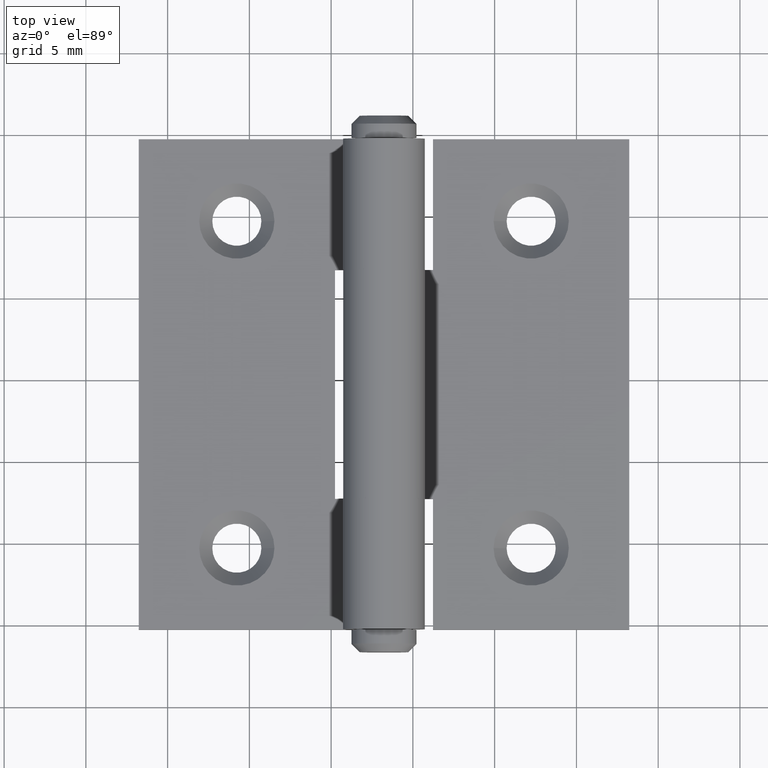
[diagram: clean part render]
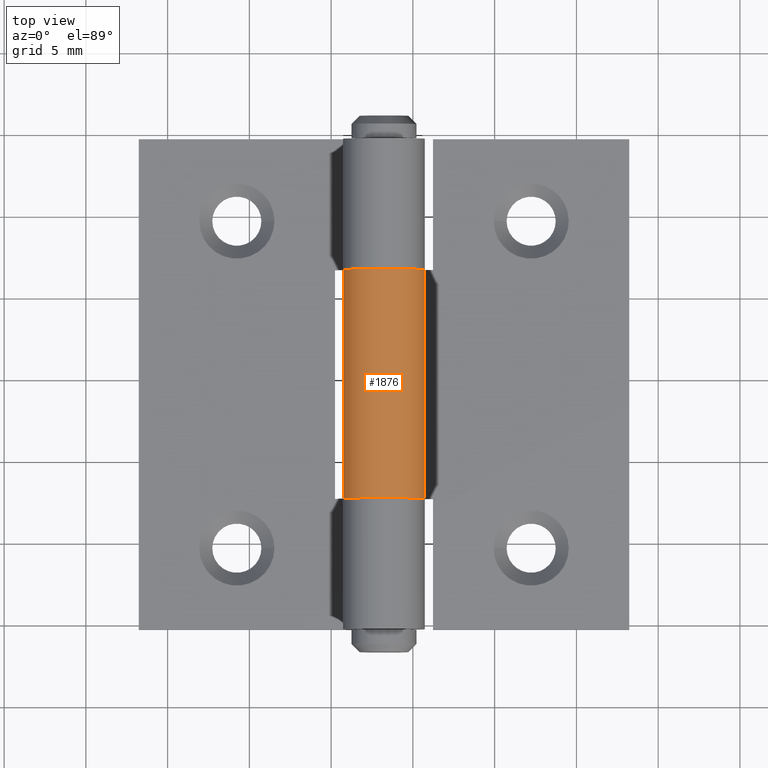
[diagram: same view with one face highlighted and labeled with its STEP entity id]
A machine part, top view. The second image highlights one B-rep face of the part: STEP entity #1876.
In plain terms, the highlighted cylindrical surface (partial cylindrical patch) has radius 2.5 mm, axis along (0, 1, -0).
Its self-contained STEP definition (entity closure, byte-faithful):
#459 = CYLINDRICAL_SURFACE ( 'NONE', #5068, 2.499999999999999556 ) ;
#603 = VERTEX_POINT ( 'NONE', #3452 ) ;
#640 = EDGE_LOOP ( 'NONE', ( #3119, #7227, #3490, #2565 ) ) ;
#897 = DIRECTION ( 'NONE',  ( 0.000000000000000000, -1.000000000000000000, 0.000000000000000000 ) ) ;
#927 = CARTESIAN_POINT ( 'NONE',  ( -2.500000000000000000, 6.999999999999999112, 2.500000000000000000 ) ) ;
#1041 = CARTESIAN_POINT ( 'NONE',  ( -4.420937271229854026, -6.999999999999999112, 0.9000000000000003553 ) ) ;
#1080 = VECTOR ( 'NONE', #6368, 1000.000000000000000 ) ;
#1251 = VERTEX_POINT ( 'NONE', #1472 ) ;
#1472 = CARTESIAN_POINT ( 'NONE',  ( -2.500000000000000444, -7.000000000000000000, 3.252606517456514288E-16 ) ) ;
#1828 = DIRECTION ( 'NONE',  ( 0.000000000000000000, 0.000000000000000000, 1.000000000000000000 ) ) ;
#1876 = ADVANCED_FACE ( 'NONE', ( #4410 ), #459, .T. ) ;
#1996 = DIRECTION ( 'NONE',  ( -0.000000000000000000, -1.000000000000000000, -0.000000000000000000 ) ) ;
#2061 = CARTESIAN_POINT ( 'NONE',  ( -2.500000000000000000, 15.00000000000000000, 2.500000000000000000 ) ) ;
#2414 = EDGE_CURVE ( 'NONE', #4431, #1251, #5568, .T. ) ;
#2565 = ORIENTED_EDGE ( 'NONE', *, *, #2414, .T. ) ;
#2583 = CARTESIAN_POINT ( 'NONE',  ( -4.420937271229854026, 15.00000000000000000, 0.9000000000000002442 ) ) ;
#2984 = AXIS2_PLACEMENT_3D ( 'NONE', #927, #897, #3098 ) ;
#3098 = DIRECTION ( 'NONE',  ( 0.000000000000000000, 0.000000000000000000, -1.000000000000000000 ) ) ;
#3119 = ORIENTED_EDGE ( 'NONE', *, *, #8241, .F. ) ;
#3289 = CARTESIAN_POINT ( 'NONE',  ( -2.500000000000000000, -6.999999999999999112, 2.500000000000000000 ) ) ;
#3452 = CARTESIAN_POINT ( 'NONE',  ( -4.420937271229854026, 6.999999999999999112, 0.9000000000000003553 ) ) ;
#3490 = ORIENTED_EDGE ( 'NONE', *, *, #7090, .T. ) ;
#4237 = CARTESIAN_POINT ( 'NONE',  ( -2.500000000000000444, 7.000000000000000000, 3.252606517456514288E-16 ) ) ;
#4410 = FACE_OUTER_BOUND ( 'NONE', #640, .T. ) ;
#4431 = VERTEX_POINT ( 'NONE', #1041 ) ;
#4554 = VERTEX_POINT ( 'NONE', #4237 ) ;
#4832 = DIRECTION ( 'NONE',  ( 0.000000000000000000, 1.000000000000000000, -0.000000000000000000 ) ) ;
#5068 = AXIS2_PLACEMENT_3D ( 'NONE', #2061, #1996, #8780 ) ;
#5099 = EDGE_CURVE ( 'NONE', #4554, #603, #5291, .T. ) ;
#5291 = CIRCLE ( 'NONE', #2984, 2.499999999999999556 ) ;
#5453 = CARTESIAN_POINT ( 'NONE',  ( -2.500000000000000000, 15.00000000000000000, 1.084202172485504434E-16 ) ) ;
#5568 = CIRCLE ( 'NONE', #6786, 2.499999999999999112 ) ;
#6246 = DIRECTION ( 'NONE',  ( -0.000000000000000000, -1.000000000000000000, -0.000000000000000000 ) ) ;
#6368 = DIRECTION ( 'NONE',  ( -0.000000000000000000, -1.000000000000000000, -0.000000000000000000 ) ) ;
#6786 = AXIS2_PLACEMENT_3D ( 'NONE', #3289, #4832, #1828 ) ;
#7006 = VECTOR ( 'NONE', #6246, 1000.000000000000000 ) ;
#7090 = EDGE_CURVE ( 'NONE', #603, #4431, #8909, .T. ) ;
#7227 = ORIENTED_EDGE ( 'NONE', *, *, #5099, .T. ) ;
#7947 = LINE ( 'NONE', #5453, #7006 ) ;
#8241 = EDGE_CURVE ( 'NONE', #4554, #1251, #7947, .T. ) ;
#8780 = DIRECTION ( 'NONE',  ( 0.000000000000000000, 0.000000000000000000, -1.000000000000000000 ) ) ;
#8909 = LINE ( 'NONE', #2583, #1080 ) ;